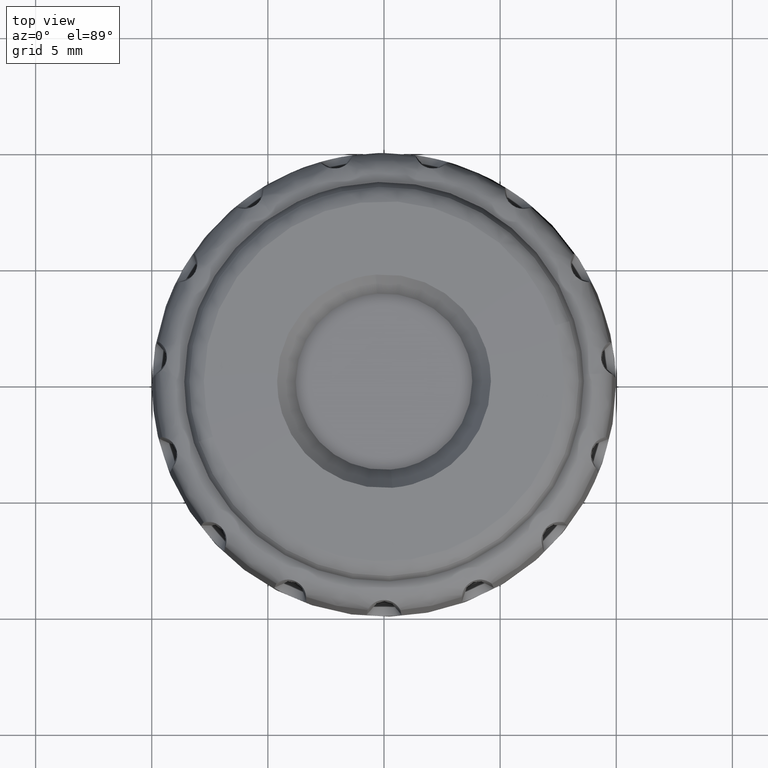
[diagram: clean part render]
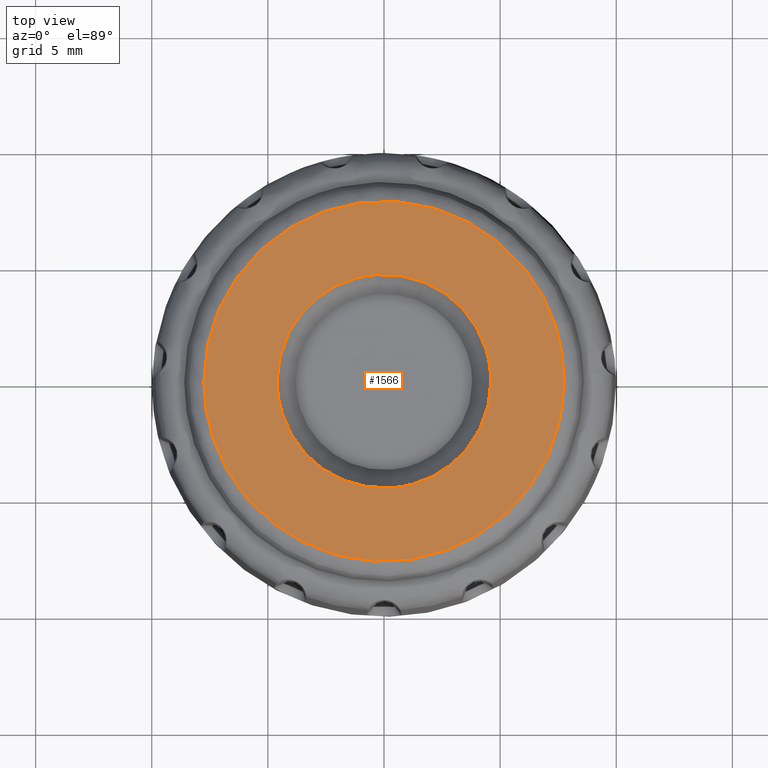
[diagram: same view with one face highlighted and labeled with its STEP entity id]
A machine part, top view. The second image highlights one B-rep face of the part: STEP entity #1566.
In plain terms, the highlighted face is a freeform B-spline surface patch.
Its self-contained STEP definition (entity closure, byte-faithful):
#1187=CARTESIAN_POINT('',(-0.361159143422162,4.588962018608465,13.947016462084360));
#1188=VERTEX_POINT('',#1187);
#1194=CARTESIAN_POINT('',(-4.603152000000000,0.0,13.947016462083660));
#1195=VERTEX_POINT('',#1194);
#1196=CARTESIAN_POINT('',(-4.603152000000000,0.0,13.947016462083660));
#1197=CARTESIAN_POINT('',(-4.603152000000020,4.255109940453701,13.947016462084013));
#1198=CARTESIAN_POINT('',(-0.361159143422162,4.588962018608465,13.947016462084353));
#1206=(BOUNDED_CURVE()B_SPLINE_CURVE(2,(#1196,#1197,#1198),.UNSPECIFIED.,.F.,.U.)B_SPLINE_CURVE_WITH_KNOTS((3,3),(0.0,0.236331300632606),.UNSPECIFIED.)CURVE()GEOMETRIC_REPRESENTATION_ITEM()RATIONAL_B_SPLINE_CURVE((1.0,0.723120658605385,0.969723356171480))REPRESENTATION_ITEM(''));
#1207=EDGE_CURVE('',#1195,#1188,#1206,.T.);
#1209=CARTESIAN_POINT('',(0.361159143422162,-4.588962018608465,13.947016462084360));
#1210=VERTEX_POINT('',#1209);
#1211=CARTESIAN_POINT('',(0.361159143422162,-4.588962018608465,13.947016462084362));
#1212=CARTESIAN_POINT('',(0.180858334654768,-4.603152000000478,13.947016462084347));
#1213=CARTESIAN_POINT('',(3.808316E-014,-4.603152000000469,13.947016462084330));
#1214=CARTESIAN_POINT('',(-4.603151999999982,-4.603152000000225,13.947016462083980));
#1215=CARTESIAN_POINT('',(-4.603152000000000,0.0,13.947016462083660));
#1223=(BOUNDED_CURVE()B_SPLINE_CURVE(2,(#1211,#1212,#1213,#1214,#1215),.UNSPECIFIED.,.F.,.U.)B_SPLINE_CURVE_WITH_KNOTS((3,2,3),(0.736331300632606,0.750000000000000,1.0),.UNSPECIFIED.)CURVE()GEOMETRIC_REPRESENTATION_ITEM()RATIONAL_B_SPLINE_CURVE((0.969723356171480,0.983986122581163,1.0,0.707106781186548,1.0))REPRESENTATION_ITEM(''));
#1224=EDGE_CURVE('',#1210,#1195,#1223,.T.);
#1256=CARTESIAN_POINT('',(4.603152000000000,0.0,13.947016462083660));
#1257=VERTEX_POINT('',#1256);
#1258=CARTESIAN_POINT('',(4.603152000000000,0.0,13.947016462083660));
#1259=CARTESIAN_POINT('',(4.603152000000019,-4.255109940453703,13.947016462084017));
#1260=CARTESIAN_POINT('',(0.361159143422162,-4.588962018608465,13.947016462084362));
#1268=(BOUNDED_CURVE()B_SPLINE_CURVE(2,(#1258,#1259,#1260),.UNSPECIFIED.,.F.,.U.)B_SPLINE_CURVE_WITH_KNOTS((3,3),(0.500000000000000,0.736331300632606),.UNSPECIFIED.)CURVE()GEOMETRIC_REPRESENTATION_ITEM()RATIONAL_B_SPLINE_CURVE((1.0,0.723120658605385,0.969723356171480))REPRESENTATION_ITEM(''));
#1269=EDGE_CURVE('',#1257,#1210,#1268,.T.);
#1271=CARTESIAN_POINT('',(-0.361159143422162,4.588962018608465,13.947016462084353));
#1272=CARTESIAN_POINT('',(-0.180858334654768,4.603152000000478,13.947016462084349));
#1273=CARTESIAN_POINT('',(-3.722856E-014,4.603152000000469,13.947016462084330));
#1274=CARTESIAN_POINT('',(4.603151999999982,4.603152000000225,13.947016462083980));
#1275=CARTESIAN_POINT('',(4.603152000000000,0.0,13.947016462083660));
#1283=(BOUNDED_CURVE()B_SPLINE_CURVE(2,(#1271,#1272,#1273,#1274,#1275),.UNSPECIFIED.,.F.,.U.)B_SPLINE_CURVE_WITH_KNOTS((3,2,3),(0.236331300632606,0.250000000000000,0.500000000000000),.UNSPECIFIED.)CURVE()GEOMETRIC_REPRESENTATION_ITEM()RATIONAL_B_SPLINE_CURVE((0.969723356171480,0.983986122581162,1.0,0.707106781186548,1.0))REPRESENTATION_ITEM(''));
#1284=EDGE_CURVE('',#1188,#1257,#1283,.T.);
#1444=CARTESIAN_POINT('',(-8.524938898132580,-8.520735845866605,13.636471818994696));
#1445=CARTESIAN_POINT('',(-4.264408174041782,-8.524611384117687,13.818240914596696));
#1446=CARTESIAN_POINT('',(4.264406729678942,-8.524611384117687,13.818240914596696));
#1447=CARTESIAN_POINT('',(8.524936013345609,-8.520735848490718,13.636471942069745));
#1448=CARTESIAN_POINT('',(-8.528812523889418,-4.262303780904498,13.818061642054316));
#1449=CARTESIAN_POINT('',(-4.266346749586361,-4.264243311827152,13.999995999999950));
#1450=CARTESIAN_POINT('',(4.266345304566922,-4.264243311827152,13.999995999999950));
#1451=CARTESIAN_POINT('',(8.528809637792831,-4.262303782217747,13.818061765241241));
#1452=CARTESIAN_POINT('',(-8.528812523889418,4.262302336542306,13.818061642054316));
#1453=CARTESIAN_POINT('',(-4.266346749586361,4.264241866807714,13.999995999999950));
#1454=CARTESIAN_POINT('',(4.266345304566922,4.264241866807714,13.999995999999950));
#1455=CARTESIAN_POINT('',(8.528809637792831,4.262302337855554,13.818061765241241));
#1456=CARTESIAN_POINT('',(-8.524938900756684,8.520732961077041,13.636471942009056));
#1457=CARTESIAN_POINT('',(-4.264408175355032,8.524608498017219,13.818241037723000));
#1458=CARTESIAN_POINT('',(4.264406730992191,8.524608498017219,13.818241037723000));
#1459=CARTESIAN_POINT('',(8.524936015969715,8.520732963701152,13.636472065084108));
#1467=(BOUNDED_SURFACE()B_SPLINE_SURFACE(2,2,((#1444,#1448,#1452,#1456),(#1445,#1449,#1453,#1457),(#1446,#1450,#1454,#1458),(#1447,#1451,#1455,#1459)),.UNSPECIFIED.,.F.,.F.,.U.)B_SPLINE_SURFACE_WITH_KNOTS((3,1,3),(3,1,3),(79.265294132614130,87.588269689532808,95.911242427444463),(79.269397610855108,87.588269689532808,95.907138949203485),.UNSPECIFIED.)GEOMETRIC_REPRESENTATION_ITEM()RATIONAL_B_SPLINE_SURFACE(((1.000909637140254,1.000455042864693,1.000455042864693,1.000909636832159),(1.000454594275562,1.0,1.0,1.000454593967466),(1.000454594275562,1.0,1.0,1.000454593967466),(1.000909636832006,1.000455042556445,1.000455042556445,1.000909636523911)))REPRESENTATION_ITEM('')SURFACE());
#1468=CARTESIAN_POINT('',(-7.375236237714455,-2.396359518274323,13.849597829718650));
#1469=VERTEX_POINT('',#1468);
#1470=CARTESIAN_POINT('',(-7.754782240562750,0.0,13.849597831981271));
#1471=VERTEX_POINT('',#1470);
#1472=CARTESIAN_POINT('',(-7.375236237714455,-2.396359518274323,13.849597829718652));
#1473=CARTESIAN_POINT('',(-7.754782268291119,-1.228236854151398,13.849597830849957));
#1474=CARTESIAN_POINT('',(-7.754782240562750,0.0,13.849597831981271));
#1482=(BOUNDED_CURVE()B_SPLINE_CURVE(2,(#1472,#1473,#1474),.UNSPECIFIED.,.F.,.U.)B_SPLINE_CURVE_WITH_KNOTS((3,3),(0.947450174520826,1.0),.UNSPECIFIED.)CURVE()GEOMETRIC_REPRESENTATION_ITEM()RATIONAL_B_SPLINE_CURVE((0.902750339217189,0.938434049869278,1.0))REPRESENTATION_ITEM(''));
#1483=EDGE_CURVE('',#1469,#1471,#1482,.T.);
#1484=ORIENTED_EDGE('',*,*,#1483,.F.);
#1485=CARTESIAN_POINT('',(7.754782240562751,0.0,13.849597831981299));
#1486=VERTEX_POINT('',#1485);
#1487=CARTESIAN_POINT('',(7.754782240562751,0.0,13.849597831981299));
#1488=CARTESIAN_POINT('',(7.754794068449614,-0.356865105902039,13.849597831973060));
#1489=CARTESIAN_POINT('',(7.702476917908472,-1.113427113585636,13.849597831947950));
#1490=CARTESIAN_POINT('',(7.460768343604543,-2.218385064046343,13.849597831887159));
#1491=CARTESIAN_POINT('',(7.027140252875020,-3.354975068069599,13.849597831797670));
#1492=CARTESIAN_POINT('',(6.434363089697337,-4.385854851350300,13.849597831687360));
#1493=CARTESIAN_POINT('',(5.804986523465984,-5.165293734459410,13.849597831577279));
#1494=CARTESIAN_POINT('',(5.208144643814185,-5.760293193222315,13.849597831476760));
#1495=CARTESIAN_POINT('',(4.537084089299550,-6.317278632210525,13.849597831365870));
#1496=CARTESIAN_POINT('',(3.760828394557295,-6.804180709931949,13.849597831241390));
#1497=CARTESIAN_POINT('',(2.945870550301816,-7.186540659614630,13.849597831113689));
#1498=CARTESIAN_POINT('',(2.097504751396335,-7.488651344217752,13.849597830983059));
#1499=CARTESIAN_POINT('',(1.075796899964034,-7.708887756967065,13.849597830828330));
#1500=CARTESIAN_POINT('',(0.075985317227446,-7.772134624612360,13.849597830681670));
#1501=CARTESIAN_POINT('',(-0.979912523054884,-7.716393197082908,13.849597830528660));
#1502=CARTESIAN_POINT('',(-2.008136769129548,-7.523650900797110,13.849597830383200));
#1503=CARTESIAN_POINT('',(-2.991937275060003,-7.172621593246536,13.849597830247740));
#1504=CARTESIAN_POINT('',(-3.748870320771314,-6.801450785370792,13.849597830145910));
#1505=CARTESIAN_POINT('',(-4.406933573817844,-6.398193480355443,13.849597830059221));
#1506=CARTESIAN_POINT('',(-5.132733726255641,-5.841046444311802,13.849597829966219));
#1507=CARTESIAN_POINT('',(-5.884368797080478,-5.094949500120378,13.849597829873650));
#1508=CARTESIAN_POINT('',(-6.508516285140893,-4.256591943339211,13.849597829802660));
#1509=CARTESIAN_POINT('',(-7.018098728466756,-3.345980244615515,13.849597829747051));
#1510=CARTESIAN_POINT('',(-7.260563796864795,-2.749344898333383,13.849597829731190));
#1511=CARTESIAN_POINT('',(-7.375236237714455,-2.396359518274323,13.849597829718650));
#1512=B_SPLINE_CURVE_WITH_KNOTS('',3,(#1487,#1488,#1489,#1490,#1491,#1492,#1493,#1494,#1495,#1496,#1497,#1498,#1499,#1500,#1501,#1502,#1503,#1504,#1505,#1506,#1507,#1508,#1509,#1510,#1511),.UNSPECIFIED.,.F.,.U.,(4,1,1,1,1,1,1,1,1,1,1,1,1,1,1,1,1,1,1,1,1,1,4),(4.706290E-009,1.070595721133881,2.269695933067581,3.383139006938698,4.710695335906944,5.824138186428595,6.380858658820189,7.237349417910664,8.436444048220086,9.121638342618310,9.935302341557756,11.134390382725460,12.247808952303361,12.933009195888809,14.303386944508240,15.374006929584271,16.059195616178830,16.830041268769271,17.686531445605748,18.799969854170349,19.999059223301469,20.812724967013359,21.926158131511379),.UNSPECIFIED.);
#1513=EDGE_CURVE('',#1486,#1469,#1512,.T.);
#1514=ORIENTED_EDGE('',*,*,#1513,.F.);
#1515=CARTESIAN_POINT('',(7.375236237714455,2.396359518274321,13.849597829718650));
#1516=VERTEX_POINT('',#1515);
#1517=CARTESIAN_POINT('',(7.375236237714455,2.396359518274322,13.849597829718652));
#1518=CARTESIAN_POINT('',(7.754782268291119,1.228236854151397,13.849597830849980));
#1519=CARTESIAN_POINT('',(7.754782240562751,0.0,13.849597831981299));
#1527=(BOUNDED_CURVE()B_SPLINE_CURVE(2,(#1517,#1518,#1519),.UNSPECIFIED.,.F.,.U.)B_SPLINE_CURVE_WITH_KNOTS((3,3),(0.447450174520826,0.500000000000000),.UNSPECIFIED.)CURVE()GEOMETRIC_REPRESENTATION_ITEM()RATIONAL_B_SPLINE_CURVE((0.902750339217189,0.938434049869278,1.0))REPRESENTATION_ITEM(''));
#1528=EDGE_CURVE('',#1516,#1486,#1527,.T.);
#1529=ORIENTED_EDGE('',*,*,#1528,.F.);
#1530=CARTESIAN_POINT('',(-7.754782240562750,0.0,13.849597831981271));
#1531=CARTESIAN_POINT('',(-7.754895119276371,0.570997711722312,13.849597831968110));
#1532=CARTESIAN_POINT('',(-7.647060707765024,1.541636817247473,13.849597831929900));
#1533=CARTESIAN_POINT('',(-7.297900878829291,2.677539903807214,13.849597831852780));
#1534=CARTESIAN_POINT('',(-6.944949668032429,3.474389532176757,13.849597831782861));
#1535=CARTESIAN_POINT('',(-6.569493674605067,4.148701109285699,13.849597831712540));
#1536=CARTESIAN_POINT('',(-5.999680829781672,4.954146810123208,13.849597831610600));
#1537=CARTESIAN_POINT('',(-5.262264700461463,5.735373749605674,13.849597831485280));
#1538=CARTESIAN_POINT('',(-4.440511268384527,6.379888835127892,13.849597831350151));
#1539=CARTESIAN_POINT('',(-3.646651413715718,6.862690582708712,13.849597831223580));
#1540=CARTESIAN_POINT('',(-2.919759779959698,7.198872308457889,13.849597831109360));
#1541=CARTESIAN_POINT('',(-2.176628204256460,7.454263652658792,13.849597830995700));
#1542=CARTESIAN_POINT('',(-1.426940942884469,7.637657986025154,13.849597830880491));
#1543=CARTESIAN_POINT('',(-0.477285879375731,7.763987564348895,13.849597830741040));
#1544=CARTESIAN_POINT('',(0.567885234307649,7.760784966231660,13.849597830587570));
#1545=CARTESIAN_POINT('',(1.530254269581766,7.618605364303339,13.849597830450691));
#1546=CARTESIAN_POINT('',(2.511423593036523,7.360674691410514,13.849597830313520));
#1547=CARTESIAN_POINT('',(3.440203692057004,6.982289904079371,13.849597830186751));
#1548=CARTESIAN_POINT('',(4.325636674706370,6.456329507769032,13.849597830069740));
#1549=CARTESIAN_POINT('',(5.065671346789760,5.894714621203391,13.849597829974760));
#1550=CARTESIAN_POINT('',(5.664157696411504,5.319988491548036,13.849597829900720));
#1551=CARTESIAN_POINT('',(6.268225828315905,4.595785948721887,13.849597829829360));
#1552=CARTESIAN_POINT('',(6.871455642042550,3.673557497344309,13.849597829762549));
#1553=CARTESIAN_POINT('',(7.220900917398915,2.871544722700671,13.849597829730310));
#1554=CARTESIAN_POINT('',(7.375236237714455,2.396359518274321,13.849597829718650));
#1555=B_SPLINE_CURVE_WITH_KNOTS('',3,(#1530,#1531,#1532,#1533,#1534,#1535,#1536,#1537,#1538,#1539,#1540,#1541,#1542,#1543,#1544,#1545,#1546,#1547,#1548,#1549,#1550,#1551,#1552,#1553,#1554),.UNSPECIFIED.,.F.,.U.,(4,1,1,1,1,1,1,1,1,1,1,1,1,1,1,1,1,1,1,1,1,1,4),(4.584493E-009,1.712966375504241,2.912068060890423,3.554433845410767,4.325276908699546,5.224594311164193,6.509332668315214,7.537121243661476,8.350787450723473,9.292937096043675,9.935302341495644,10.706143743894231,11.605462615872080,12.804537164214841,13.832320972989301,14.517512458413380,15.845075656839260,16.830041268744569,17.600881590831250,18.628671590790429,19.313863186999839,20.427305289967101,21.926158131511571),.UNSPECIFIED.);
#1556=EDGE_CURVE('',#1471,#1516,#1555,.T.);
#1557=ORIENTED_EDGE('',*,*,#1556,.F.);
#1558=EDGE_LOOP('',(#1484,#1514,#1529,#1557));
#1559=FACE_OUTER_BOUND('',#1558,.T.);
#1560=ORIENTED_EDGE('',*,*,#1269,.T.);
#1561=ORIENTED_EDGE('',*,*,#1224,.T.);
#1562=ORIENTED_EDGE('',*,*,#1207,.T.);
#1563=ORIENTED_EDGE('',*,*,#1284,.T.);
#1564=EDGE_LOOP('',(#1560,#1561,#1562,#1563));
#1565=FACE_BOUND('',#1564,.T.);
#1566=ADVANCED_FACE('',(#1559,#1565),#1467,.T.);